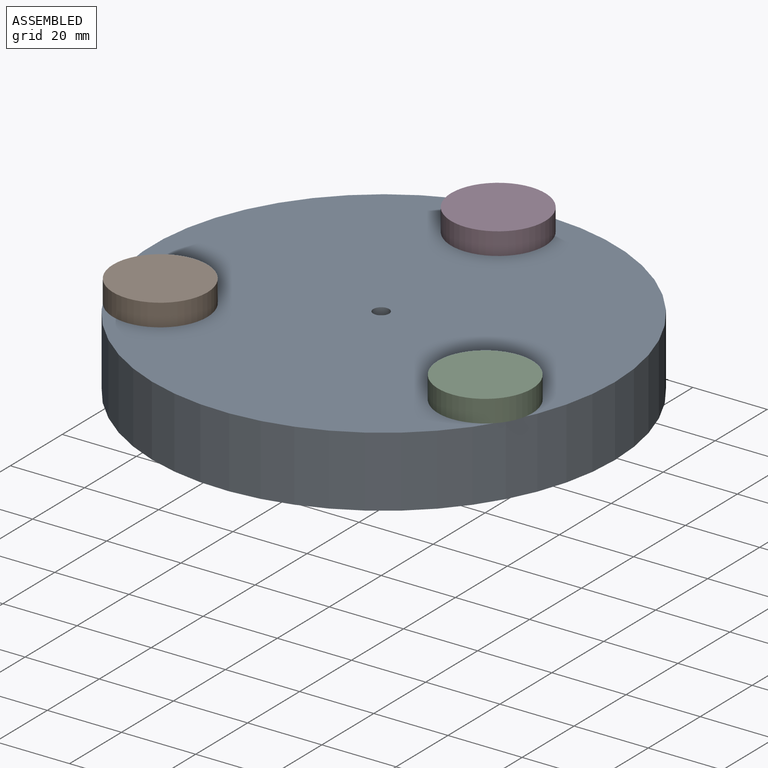
[diagram: assembled view]
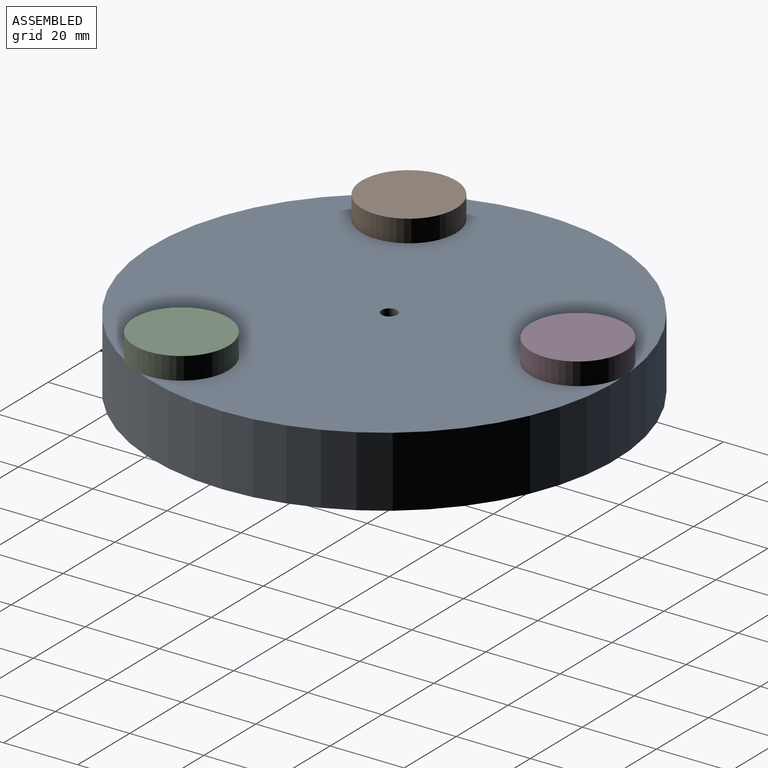
[diagram: assembled view, second angle]
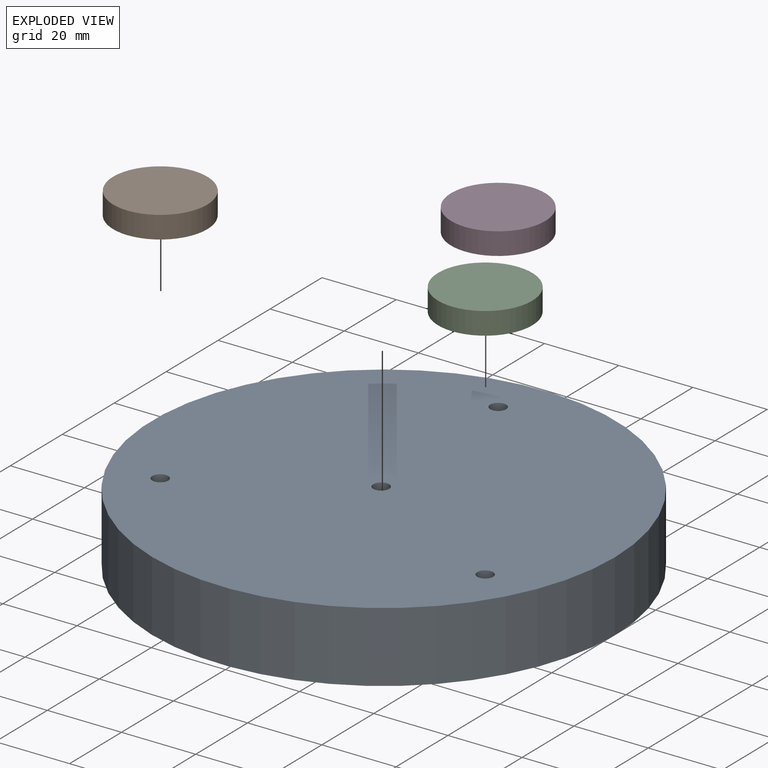
[diagram: exploded view]
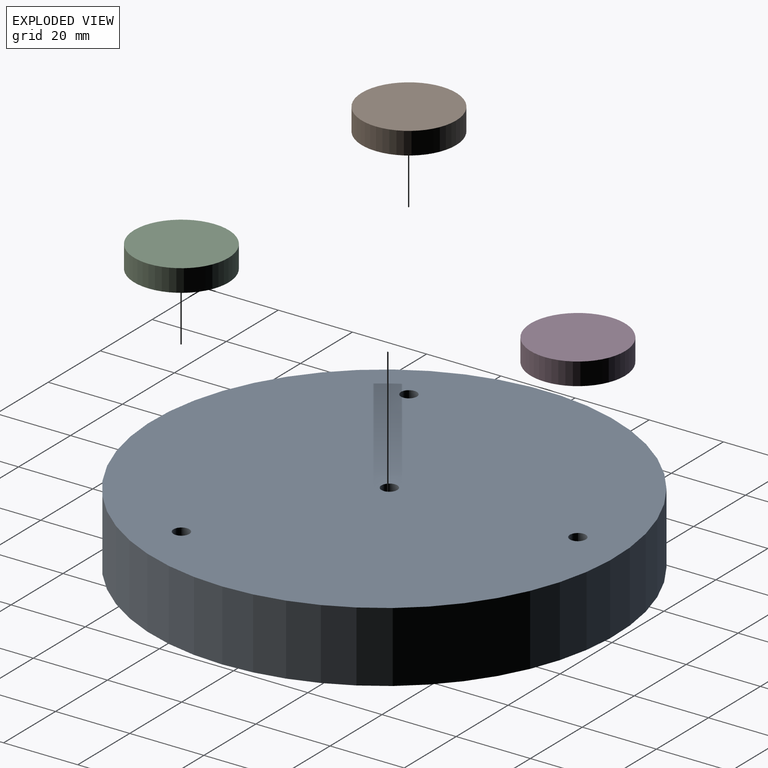
[diagram: exploded view, second angle]
ASSEMBLY  parts=4 mates=3
PART A: 7 faces, bbox 124.7x124.7x19 mm
  f0: cylinder r=2.15mm len=19mm, axis (0,0,1), area 256.2mm2, adj f5,f6
  f1: cylinder r=2.15mm len=19mm, axis (0,0,1), area 256.2mm2, adj f5,f6
  f2: cylinder r=62.35mm len=124.71mm, axis (0,0,1), area 7443.8mm2, adj f5,f6
  f3: cylinder r=2.15mm len=19mm, axis (0,0,1), area 256.2mm2, adj f5,f6
  f4: cylinder r=2.15mm len=19mm, axis (0,0,1), area 256.2mm2, adj f5,f6
  f5: plane 124.71x124.71mm, normal (0,0,-1), area 12156.7mm2, adj f0,f1,f2,f3,f4
  f6: plane 124.71x124.71mm, normal (0,0,1), area 12156.7mm2, adj f0,f1,f2,f3,f4
PART B: 3 faces, bbox 25.4x25.4x6 mm
  f0: cylinder r=12.7mm len=25.4mm, axis (0,0,-1), area 478.8mm2, adj f1,f2
  f1: plane 25.4x25.4mm, normal (0,0,1), area 506.7mm2, adj f0
  f2: plane 25.4x25.4mm, normal (0,0,-1), area 506.7mm2, adj f0
PART C: same geometry as B
PART D: same geometry as B
PLACE A at identity
PLACE B t=(42.23,-67.75,0)mm
PLACE C t=(129.83,-67.75,0)mm
PLACE D t=(81.96,5.62,0)mm
MATE fastened B.f0 <-> A.f4  axis (0,0,-1) through (-42.44,-24.46,0)mm
MATE fastened C.f0 <-> A.f0  axis (0,0,-1) through (45.16,-24.46,0)mm
MATE fastened D.f0 <-> A.f1  axis (0,0,-1) through (-2.71,48.91,0)mm
